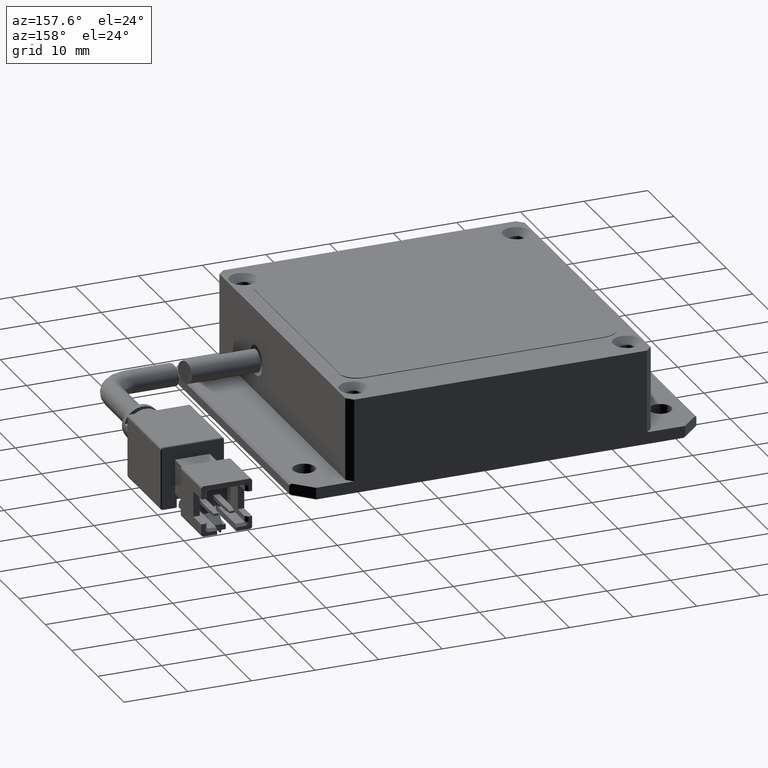
[diagram: clean part render]
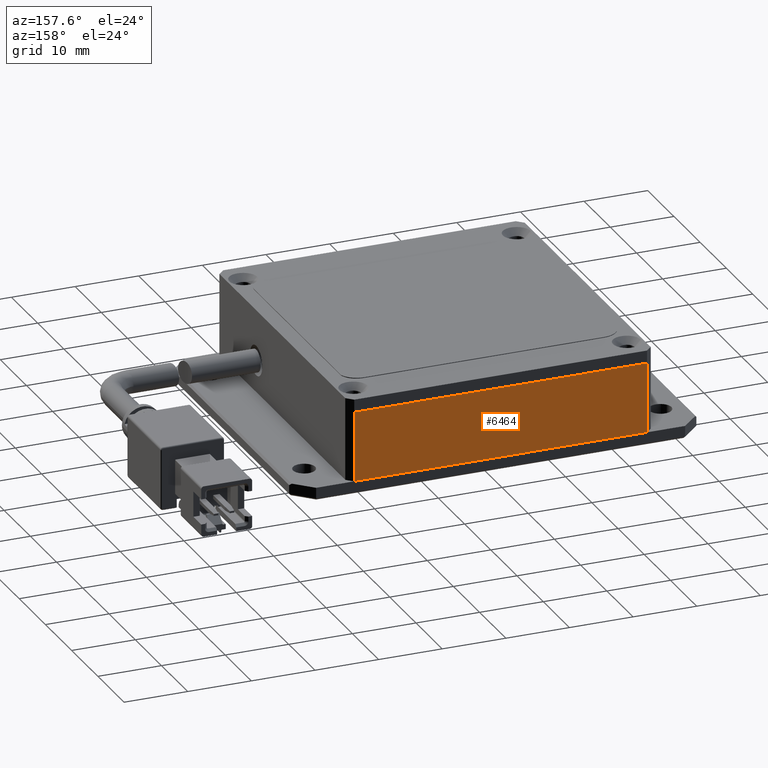
[diagram: same view with one face highlighted and labeled with its STEP entity id]
A machine part, auxiliary view. The second image highlights one B-rep face of the part: STEP entity #6464.
In plain terms, the highlighted planar face has unit normal (0, -1, 0).
Its self-contained STEP definition (entity closure, byte-faithful):
#570 = DIRECTION ( 'NONE',  ( 1.000000000000000000, 0.0000000000000000000, 0.0000000000000000000 ) ) ;
#1363 = VERTEX_POINT ( 'NONE', #6452 ) ;
#1727 = DIRECTION ( 'NONE',  ( 0.0000000000000000000, -1.000000000000000000, 0.0000000000000000000 ) ) ;
#1930 = CARTESIAN_POINT ( 'NONE',  ( -24.90683466972126700, 27.29095074455903400, 10.99999999998369100 ) ) ;
#3216 = VECTOR ( 'NONE', #17721, 1000.000000000000000 ) ;
#3248 = VECTOR ( 'NONE', #3750, 1000.000000000000000 ) ;
#3750 = DIRECTION ( 'NONE',  ( 0.0000000000000000000, -0.0000000000000000000, -1.000000000000000000 ) ) ;
#4695 = FACE_OUTER_BOUND ( 'NONE', #16559, .T. ) ;
#5040 = VECTOR ( 'NONE', #13032, 1000.000000000000000 ) ;
#5368 = AXIS2_PLACEMENT_3D ( 'NONE', #1930, #1727, #12910 ) ;
#5827 = EDGE_CURVE ( 'NONE', #1363, #9167, #18582, .T. ) ;
#6288 = LINE ( 'NONE', #13162, #18284 ) ;
#6452 = CARTESIAN_POINT ( 'NONE',  ( -23.90683466972126700, 27.29095074455903400, 10.99999999998369100 ) ) ;
#6464 = ADVANCED_FACE ( 'NONE', ( #4695 ), #11410, .F. ) ;
#8054 = EDGE_CURVE ( 'NONE', #9167, #11967, #6288, .T. ) ;
#8622 = ORIENTED_EDGE ( 'NONE', *, *, #8054, .F. ) ;
#8662 = CARTESIAN_POINT ( 'NONE',  ( 22.09316533027874700, 27.29095074455904100, 10.99999999998369100 ) ) ;
#9167 = VERTEX_POINT ( 'NONE', #11156 ) ;
#11156 = CARTESIAN_POINT ( 'NONE',  ( -23.90683466972126700, 27.29095074455903400, -1.631073748287192900E-011 ) ) ;
#11410 = PLANE ( 'NONE',  #5368 ) ;
#11606 = VERTEX_POINT ( 'NONE', #8662 ) ;
#11669 = LINE ( 'NONE', #16073, #3216 ) ;
#11967 = VERTEX_POINT ( 'NONE', #14118 ) ;
#12910 = DIRECTION ( 'NONE',  ( 0.0000000000000000000, -0.0000000000000000000, -1.000000000000000000 ) ) ;
#13032 = DIRECTION ( 'NONE',  ( 1.000000000000000000, -0.0000000000000000000, 0.0000000000000000000 ) ) ;
#13126 = ORIENTED_EDGE ( 'NONE', *, *, #18851, .T. ) ;
#13162 = CARTESIAN_POINT ( 'NONE',  ( -24.90683466972126700, 27.29095074455903400, -1.630813539765796300E-011 ) ) ;
#13222 = CARTESIAN_POINT ( 'NONE',  ( -23.90683466972126700, 27.29095074455903400, 10.99999999998369100 ) ) ;
#14118 = CARTESIAN_POINT ( 'NONE',  ( 22.09316533027875500, 27.29095074455903400, -1.630878591896145500E-011 ) ) ;
#15272 = ORIENTED_EDGE ( 'NONE', *, *, #5827, .F. ) ;
#16073 = CARTESIAN_POINT ( 'NONE',  ( 22.09316533027874700, 27.29095074455903400, 10.99999999998369100 ) ) ;
#16559 = EDGE_LOOP ( 'NONE', ( #17627, #8622, #15272, #13126 ) ) ;
#16828 = EDGE_CURVE ( 'NONE', #11967, #11606, #11669, .T. ) ;
#17627 = ORIENTED_EDGE ( 'NONE', *, *, #16828, .F. ) ;
#17721 = DIRECTION ( 'NONE',  ( -0.0000000000000000000, 0.0000000000000000000, 1.000000000000000000 ) ) ;
#18284 = VECTOR ( 'NONE', #570, 1000.000000000000000 ) ;
#18582 = LINE ( 'NONE', #13222, #3248 ) ;
#18851 = EDGE_CURVE ( 'NONE', #1363, #11606, #20128, .T. ) ;
#19317 = CARTESIAN_POINT ( 'NONE',  ( -24.90683466972126700, 27.29095074455903400, 10.99999999998369100 ) ) ;
#20128 = LINE ( 'NONE', #19317, #5040 ) ;